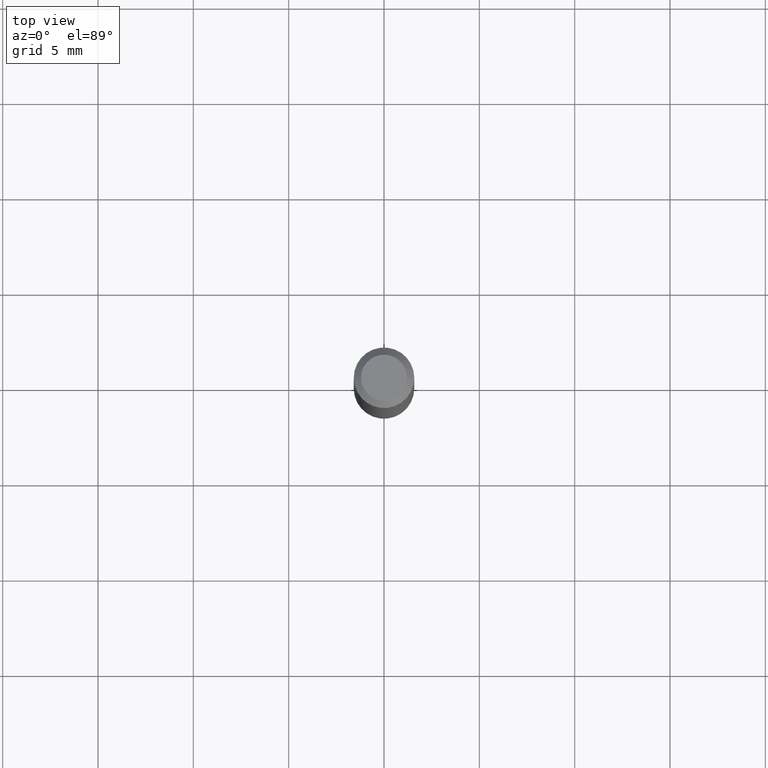
[diagram: clean part render]
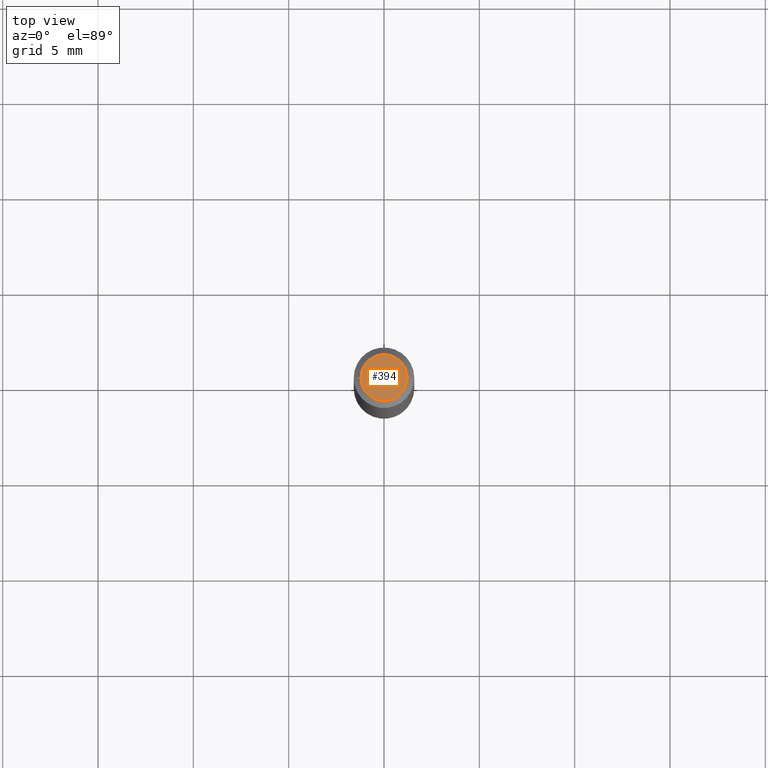
[diagram: same view with one face highlighted and labeled with its STEP entity id]
A machine part, top view. The second image highlights one B-rep face of the part: STEP entity #394.
In plain terms, the highlighted planar face has unit normal (0, -0, -1).
Its self-contained STEP definition (entity closure, byte-faithful):
#21 = DIRECTION ( 'NONE',  ( 1.000000000000000000, -6.982962677686266711E-15, 4.852736867747365086E-29 ) ) ;
#24 = PLANE ( 'NONE',  #47 ) ;
#47 = AXIS2_PLACEMENT_3D ( 'NONE', #427, #516, #109 ) ;
#83 = ORIENTED_EDGE ( 'NONE', *, *, #84, .T. ) ;
#84 = EDGE_CURVE ( 'NONE', #397, #215, #207, .T. ) ;
#94 = CIRCLE ( 'NONE', #454, 0.04750000000000000749 ) ;
#109 = DIRECTION ( 'NONE',  ( -1.000000000000000000, 6.982962677686265922E-15, -4.876176775795935793E-29 ) ) ;
#152 = CARTESIAN_POINT ( 'NONE',  ( 0.04750000000000000749, -4.035134999187568762E-16, 2.731847993664288856E-16 ) ) ;
#207 = CIRCLE ( 'NONE', #260, 0.04750000000000000749 ) ;
#215 = VERTEX_POINT ( 'NONE', #152 ) ;
#233 = EDGE_CURVE ( 'NONE', #215, #397, #94, .T. ) ;
#260 = AXIS2_PLACEMENT_3D ( 'NONE', #373, #462, #412 ) ;
#264 = CARTESIAN_POINT ( 'NONE',  ( -6.680649051745406845E-45, 9.538196290434862081E-31, 2.731847993664263218E-16 ) ) ;
#275 = FACE_OUTER_BOUND ( 'NONE', #362, .T. ) ;
#361 = ORIENTED_EDGE ( 'NONE', *, *, #233, .T. ) ;
#362 = EDGE_LOOP ( 'NONE', ( #83, #361 ) ) ;
#373 = CARTESIAN_POINT ( 'NONE',  ( -6.680649051745406845E-45, 9.538196290434862081E-31, 2.731847993664263218E-16 ) ) ;
#394 = ADVANCED_FACE ( 'NONE', ( #275 ), #24, .F. ) ;
#397 = VERTEX_POINT ( 'NONE', #434 ) ;
#412 = DIRECTION ( 'NONE',  ( 1.000000000000000000, -6.982962677686266711E-15, 4.852736867747365086E-29 ) ) ;
#425 = DIRECTION ( 'NONE',  ( -2.445468806185136597E-29, 3.491481338843145583E-15, 1.000000000000000000 ) ) ;
#427 = CARTESIAN_POINT ( 'NONE',  ( 3.316907271900976589E-16, 0.04750000000000000749, -2.925296391183627249E-17 ) ) ;
#434 = CARTESIAN_POINT ( 'NONE',  ( -0.04750000000000000749, 3.578768372314221353E-16, 2.731847993664239060E-16 ) ) ;
#454 = AXIS2_PLACEMENT_3D ( 'NONE', #264, #425, #21 ) ;
#462 = DIRECTION ( 'NONE',  ( -2.445468806185136597E-29, 3.491481338843145583E-15, 1.000000000000000000 ) ) ;
#516 = DIRECTION ( 'NONE',  ( 2.438088387897960049E-29, -3.491481338843145188E-15, -1.000000000000000000 ) ) ;